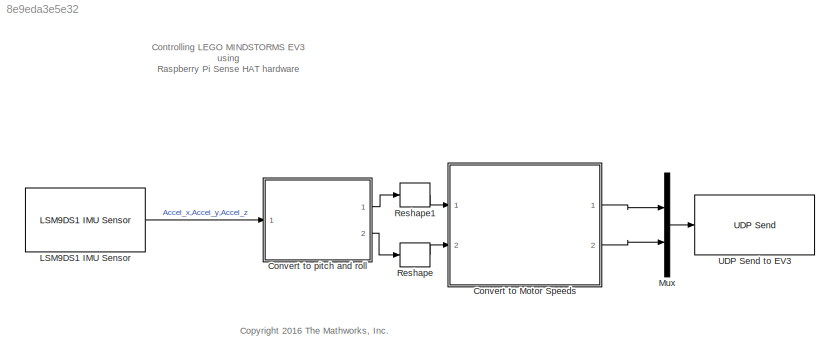
MODEL slx_8e9eda3e5e32
KIND model
CONFIG AbsTol = auto
CONFIG EnableMultiTasking = off
CONFIG FixedStep = auto
CONFIG MaxStep = auto
CONFIG MinStep = auto
CONFIG RelTol = 1e-3
CONFIG SampleTimeConstraint = Unconstrained
CONFIG Solver = FixedStepAuto
CONFIG SolverName = FixedStepAuto
CONFIG StartTime = 0.0
CONFIG StopTime = inf
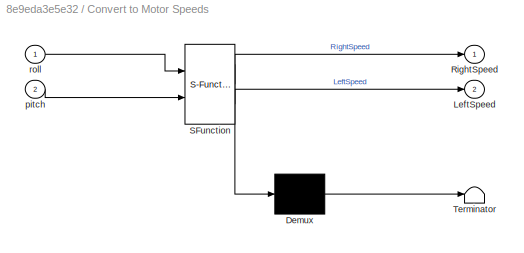
BLOCK [SubSystem] Convert to Motor Speeds
  ErrorFcn = Stateflow.Translate.translate
  PermitHierarchicalResolution = ExplicitOnly
  Ports = [2, 2]
  RequestExecContextInheritance = off
  SFBlockType = MATLAB Function
  TreatAsAtomicUnit = on
BLOCK [Demux] Convert to Motor Speeds/ Demux 
  Outputs = 1
  Ports = [1, 1]
BLOCK [S-Function] Convert to Motor Speeds/ SFunction 
  EnableBusSupport = off
  FunctionName = sf_sfun
  PortCounts = [2 3]
  Ports = [2, 3]
  SFcnIsStateOwnerBlock = off
  SFunctionDeploymentMode = off
  Tag = Stateflow S-Function raspberrypi_sensehat_ev3robot 2
BLOCK [Terminator] Convert to Motor Speeds/ Terminator 
BLOCK [Outport] Convert to Motor Speeds/LeftSpeed
  IconDisplay = Port number
  Port = 2
BLOCK [Outport] Convert to Motor Speeds/RightSpeed
  IconDisplay = Port number
BLOCK [Inport] Convert to Motor Speeds/pitch
  IconDisplay = Port number
  Port = 2
BLOCK [Inport] Convert to Motor Speeds/roll
  IconDisplay = Port number
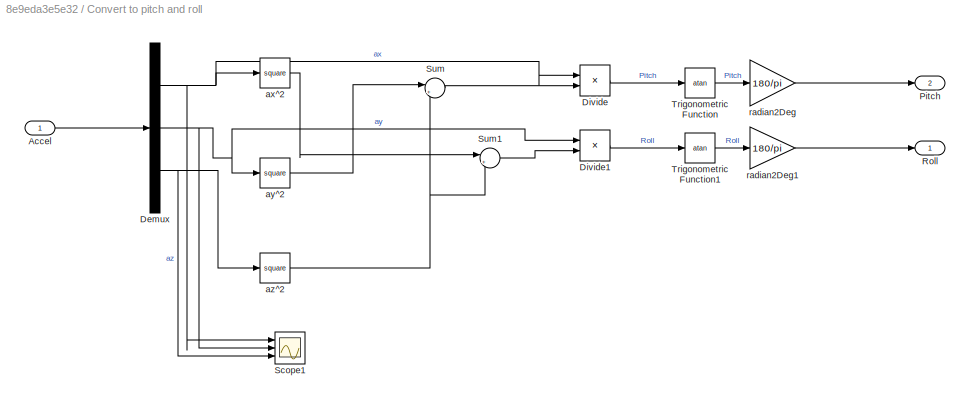
BLOCK [SubSystem] Convert to pitch and roll
  Ports = [1, 2]
  RequestExecContextInheritance = off
BLOCK [Inport] Convert to pitch and roll/Accel
  IconDisplay = Port number
BLOCK [Demux] Convert to pitch and roll/Demux
  DisplayOption = bar
  Outputs = 3
  Ports = [1, 3]
BLOCK [Product] Convert to pitch and roll/Divide
  InputSameDT = off
  Inputs = */
  OutDataTypeStr = Inherit: Inherit via internal rule
  Ports = [2, 1]
  RndMeth = Floor
  SaturateOnIntegerOverflow = off
BLOCK [Product] Convert to pitch and roll/Divide1
  InputSameDT = off
  Inputs = */
  OutDataTypeStr = Inherit: Inherit via internal rule
  Ports = [2, 1]
  RndMeth = Floor
  SaturateOnIntegerOverflow = off
BLOCK [Outport] Convert to pitch and roll/Pitch
  IconDisplay = Port number
  Port = 2
BLOCK [Outport] Convert to pitch and roll/Roll
  IconDisplay = Port number
BLOCK [Scope] Convert to pitch and roll/Scope1
  Floating = off
  NumInputPorts = 3
  Ports = [3]
  ScopeSpecificationString = Simulink.scopes.TimeScopeBlockCfg('CurrentConfiguration', extmgr.ConfigurationSet(extmgr.Configuration('Core','General UI',true),extmgr.Configuration('Core','Source UI',true),extmgr.Configuration('Sources','WiredSimulink',true,'DataLoggingLimitDataPoints',true,'DataLoggingSaveFormat','Array','DataLoggingDecimation','1','DataLoggingDecimateData',true),extmgr.Configuration('Visuals','Time Domain',tr...<+126ch>
BLOCK [Sum] Convert to pitch and roll/Sum
  IconShape = round
  InputSameDT = off
  Inputs = |++
  OutDataTypeStr = Inherit: Inherit via internal rule
  Ports = [2, 1]
  SaturateOnIntegerOverflow = off
BLOCK [Sum] Convert to pitch and roll/Sum1
  IconShape = round
  InputSameDT = off
  Inputs = |++
  OutDataTypeStr = Inherit: Inherit via internal rule
  Ports = [2, 1]
  SaturateOnIntegerOverflow = off
BLOCK [Trigonometry] Convert to pitch and roll/Trigonometric Function
  Operator = atan
  Ports = [1, 1]
BLOCK [Trigonometry] Convert to pitch and roll/Trigonometric Function1
  Operator = atan
  Ports = [1, 1]
BLOCK [Math] Convert to pitch and roll/ax^2
  Operator = square
  Ports = [1, 1]
BLOCK [Math] Convert to pitch and roll/ay^2
  Operator = square
  Ports = [1, 1]
BLOCK [Math] Convert to pitch and roll/az^2
  Operator = square
  Ports = [1, 1]
BLOCK [Gain] Convert to pitch and roll/radian2Deg
  Gain = 180/pi
  OutDataTypeStr = double
  ParamDataTypeStr = Inherit: Inherit via internal rule
  SaturateOnIntegerOverflow = off
BLOCK [Gain] Convert to pitch and roll/radian2Deg1
  Gain = 180/pi
  OutDataTypeStr = double
  ParamDataTypeStr = Inherit: Inherit via internal rule
  SaturateOnIntegerOverflow = off
BLOCK [Reference] LSM9DS1 IMU Sensor  REF=sensehatlib/LSM9DS1 IMU Sensor
  Ports = [0, 1]
  SourceBlock = sensehatlib/LSM9DS1 IMU Sensor
  SourceProductName = Simulink Support Package for Raspberry Pi Hardware
  SourceType = LSM9DS1 9-DoF IMU Sensor
BLOCK [Mux] Mux
  DisplayOption = bar
  Inputs = 2
  Ports = [2, 1]
BLOCK [Reshape] Reshape
  OutputDimensionality = Customize
  OutputDimensions = [1]
  Ports = [1, 1]
BLOCK [Reshape] Reshape1
  OutputDimensionality = Customize
  OutputDimensions = [1]
  Ports = [1, 1]
BLOCK [Reference] UDP Send to EV3  REF=embdlinuxlib/UDP Send
  Ports = [1]
  SourceBlock = embdlinuxlib/UDP Send
  SourceProductBaseCode = RASPPI
  SourceProductName = Simulink Support Package for Raspberry Pi Hardware
  SourceType = UDP Send
ANNOTATION (root): Controlling LEGO MINDSTORMS EV3 using Raspberry Pi Sense HAT hardware
ANNOTATION (root): <copyright redacted>
LINE Convert to Motor Speeds:1 -> Mux:1
LINE Convert to Motor Speeds:2 -> Mux:2
LINE Convert to pitch and roll/Accel:1 -> Convert to pitch and roll/Demux:1
NET Convert to pitch and roll/Demux:1 -> Convert to pitch and roll/Divide:1, Convert to pitch and roll/Scope1:1, Convert to pitch and roll/ax^2:1
NET Convert to pitch and roll/Demux:2 -> Convert to pitch and roll/Divide1:1, Convert to pitch and roll/Scope1:2, Convert to pitch and roll/ay^2:1
NET Convert to pitch and roll/Demux:3 -> Convert to pitch and roll/Scope1:3, Convert to pitch and roll/az^2:1
LINE Convert to pitch and roll/Divide1:1 -> Convert to pitch and roll/Trigonometric Function1:1
LINE Convert to pitch and roll/Divide:1 -> Convert to pitch and roll/Trigonometric Function:1
LINE Convert to pitch and roll/Sum1:1 -> Convert to pitch and roll/Divide1:2
LINE Convert to pitch and roll/Sum:1 -> Convert to pitch and roll/Divide:2
LINE Convert to pitch and roll/Trigonometric Function1:1 -> Convert to pitch and roll/radian2Deg1:1
LINE Convert to pitch and roll/Trigonometric Function:1 -> Convert to pitch and roll/radian2Deg:1
LINE Convert to pitch and roll/ax^2:1 -> Convert to pitch and roll/Sum1:1
LINE Convert to pitch and roll/ay^2:1 -> Convert to pitch and roll/Sum:1
NET Convert to pitch and roll/az^2:1 -> Convert to pitch and roll/Sum1:2, Convert to pitch and roll/Sum:2
LINE Convert to pitch and roll/radian2Deg1:1 -> Convert to pitch and roll/Roll:1
LINE Convert to pitch and roll/radian2Deg:1 -> Convert to pitch and roll/Pitch:1
LINE Convert to pitch and roll:1 -> Reshape1:1
LINE Convert to pitch and roll:2 -> Reshape:1
LINE LSM9DS1 IMU Sensor:1 -> Convert to pitch and roll:1
LINE Mux:1 -> UDP Send to EV3:1
LINE Reshape1:1 -> Convert to Motor Speeds:1
LINE Reshape:1 -> Convert to Motor Speeds:2
note: NET lines group one-source signal fan-out (src -> all destinations, sorted); 1:1 wires keep LINE
CHART Convert to Motor Speeds states=1 transitions=1
  STATE_LABEL 'eML_blk_kernel()'
  STATE_LABEL 'SCRIPT:\nfunction [RightSpeed,LeftSpeed]= roll_pitch_to_speed(roll,pitch)\n\n% The input is the Sense Hat Roll and Pitch angles.\n% Output is the Left wheel velocity (Vl) and Right wheel Velocity (Vr).\n% The output to the wheel varies from -100 for Full power reverse to 100\n% for Full power forward\n\n%% Robot Parameters\nlen = 15;\n% Distance between the two wheels of Lego EV3 robot in centimeters\n\nv_max...<+2926ch>'
